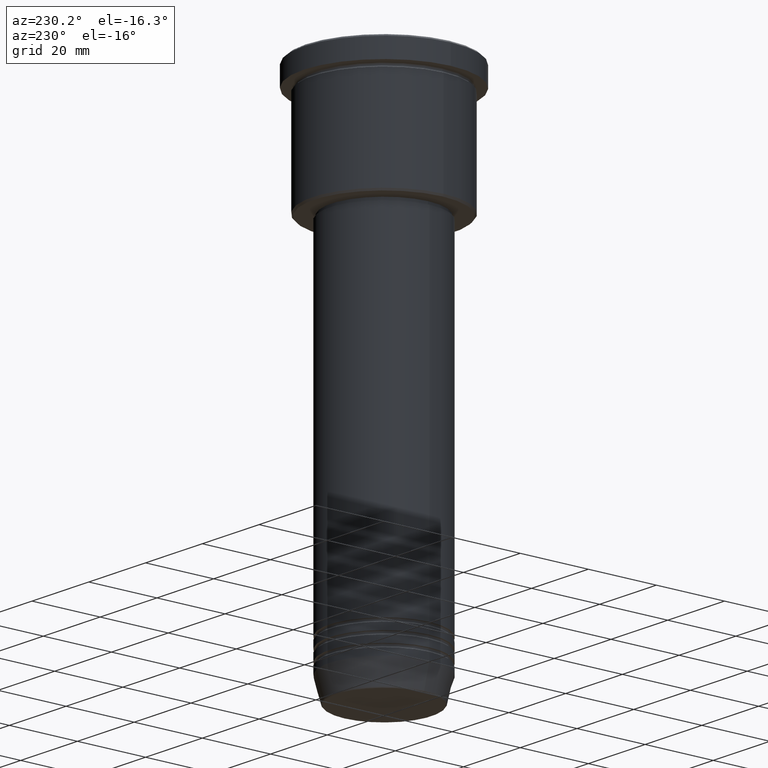
[diagram: clean part render]
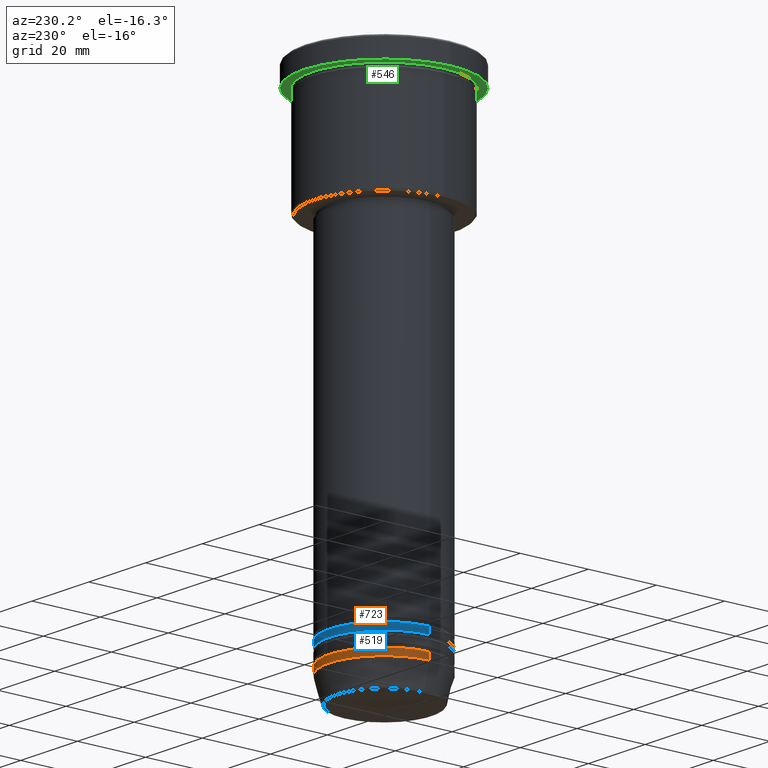
[diagram: same view with three faces highlighted in distinct colors, each labeled with its STEP entity id]
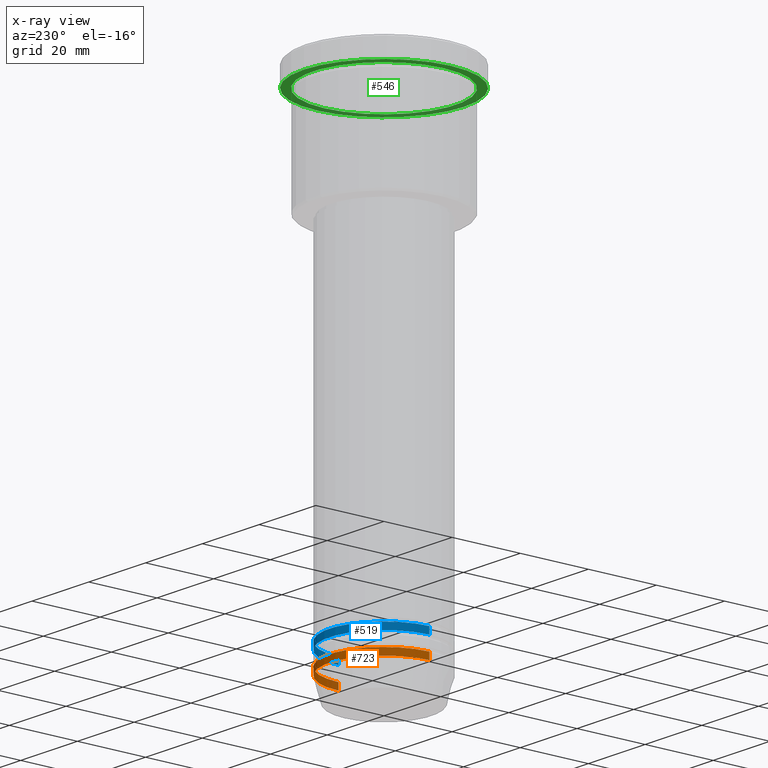
[diagram: x-ray of the same camera — body ghosted, the three highlighted faces saturated]
A machine part, auxiliary view with three faces highlighted in distinct colors.
The next image is the same camera in x-ray (body ghosted, the three faces saturated) — at least one of them is partly hidden behind the body in this view.
Their STEP definitions:

[orange] entity #723 — the highlighted cylindrical surface (partial cylindrical patch) has radius 16 mm, axis along (-0, -0, 1).
#45 = AXIS2_PLACEMENT_3D ( 'NONE', #1065, #797, #875 ) ;
#90 = CARTESIAN_POINT ( 'NONE',  ( -16.00000000000000000, 1.959434878635765131E-15, -144.0000000000000284 ) ) ;
#102 = EDGE_CURVE ( 'NONE', #195, #319, #159, .T. ) ;
#132 = CARTESIAN_POINT ( 'NONE',  ( 0.000000000000000000, 0.000000000000000000, -144.0000000000000284 ) ) ;
#159 = LINE ( 'NONE', #256, #1002 ) ;
#179 = CARTESIAN_POINT ( 'NONE',  ( 16.00000000000000000, 0.000000000000000000, -142.0000000000000284 ) ) ;
#195 = VERTEX_POINT ( 'NONE', #479 ) ;
#256 = CARTESIAN_POINT ( 'NONE',  ( 16.00000000000000000, 0.000000000000000000, 0.000000000000000000 ) ) ;
#310 = EDGE_LOOP ( 'NONE', ( #321, #560, #551, #653 ) ) ;
#319 = VERTEX_POINT ( 'NONE', #179 ) ;
#321 = ORIENTED_EDGE ( 'NONE', *, *, #345, .T. ) ;
#345 = EDGE_CURVE ( 'NONE', #195, #829, #1038, .T. ) ;
#347 = DIRECTION ( 'NONE',  ( -0.000000000000000000, -0.000000000000000000, 1.000000000000000000 ) ) ;
#410 = CIRCLE ( 'NONE', #45, 16.00000000000000000 ) ;
#479 = CARTESIAN_POINT ( 'NONE',  ( 16.00000000000000000, 0.000000000000000000, -144.0000000000000284 ) ) ;
#485 = AXIS2_PLACEMENT_3D ( 'NONE', #496, #764, #1134 ) ;
#493 = DIRECTION ( 'NONE',  ( -0.000000000000000000, -0.000000000000000000, 1.000000000000000000 ) ) ;
#496 = CARTESIAN_POINT ( 'NONE',  ( 0.000000000000000000, 0.000000000000000000, 0.000000000000000000 ) ) ;
#551 = ORIENTED_EDGE ( 'NONE', *, *, #597, .F. ) ;
#560 = ORIENTED_EDGE ( 'NONE', *, *, #639, .T. ) ;
#597 = EDGE_CURVE ( 'NONE', #319, #1016, #410, .T. ) ;
#639 = EDGE_CURVE ( 'NONE', #829, #1016, #868, .T. ) ;
#651 = AXIS2_PLACEMENT_3D ( 'NONE', #132, #493, #755 ) ;
#653 = ORIENTED_EDGE ( 'NONE', *, *, #102, .F. ) ;
#686 = CYLINDRICAL_SURFACE ( 'NONE', #485, 16.00000000000000000 ) ;
#723 = ADVANCED_FACE ( 'NONE', ( #955 ), #686, .T. ) ;
#755 = DIRECTION ( 'NONE',  ( 1.000000000000000000, 0.000000000000000000, 0.000000000000000000 ) ) ;
#764 = DIRECTION ( 'NONE',  ( -0.000000000000000000, -0.000000000000000000, 1.000000000000000000 ) ) ;
#781 = CARTESIAN_POINT ( 'NONE',  ( -16.00000000000000000, 1.959434878635765131E-15, 0.000000000000000000 ) ) ;
#787 = VECTOR ( 'NONE', #1138, 1000.000000000000000 ) ;
#797 = DIRECTION ( 'NONE',  ( -0.000000000000000000, -0.000000000000000000, 1.000000000000000000 ) ) ;
#829 = VERTEX_POINT ( 'NONE', #90 ) ;
#868 = LINE ( 'NONE', #781, #787 ) ;
#875 = DIRECTION ( 'NONE',  ( 1.000000000000000000, 0.000000000000000000, 0.000000000000000000 ) ) ;
#955 = FACE_OUTER_BOUND ( 'NONE', #310, .T. ) ;
#1002 = VECTOR ( 'NONE', #347, 1000.000000000000000 ) ;
#1016 = VERTEX_POINT ( 'NONE', #1106 ) ;
#1038 = CIRCLE ( 'NONE', #651, 16.00000000000000000 ) ;
#1065 = CARTESIAN_POINT ( 'NONE',  ( 0.000000000000000000, 0.000000000000000000, -142.0000000000000284 ) ) ;
#1106 = CARTESIAN_POINT ( 'NONE',  ( -16.00000000000000000, 1.959434878635765131E-15, -142.0000000000000284 ) ) ;
#1134 = DIRECTION ( 'NONE',  ( 1.000000000000000000, 0.000000000000000000, 0.000000000000000000 ) ) ;
#1138 = DIRECTION ( 'NONE',  ( -0.000000000000000000, -0.000000000000000000, 1.000000000000000000 ) ) ;

[blue] entity #519 — the highlighted cylindrical surface (partial cylindrical patch) has radius 16 mm, axis along (-0, -0, 1).
#51 = CARTESIAN_POINT ( 'NONE',  ( 16.00000000000000000, 0.000000000000000000, 0.000000000000000000 ) ) ;
#66 = DIRECTION ( 'NONE',  ( -0.000000000000000000, -0.000000000000000000, 1.000000000000000000 ) ) ;
#80 = CARTESIAN_POINT ( 'NONE',  ( -16.00000000000000000, 1.959434878635765131E-15, 0.000000000000000000 ) ) ;
#81 = EDGE_CURVE ( 'NONE', #778, #82, #119, .T. ) ;
#82 = VERTEX_POINT ( 'NONE', #169 ) ;
#119 = CIRCLE ( 'NONE', #714, 16.00000000000000000 ) ;
#137 = LINE ( 'NONE', #51, #531 ) ;
#152 = DIRECTION ( 'NONE',  ( -0.000000000000000000, -0.000000000000000000, 1.000000000000000000 ) ) ;
#161 = LINE ( 'NONE', #80, #182 ) ;
#169 = CARTESIAN_POINT ( 'NONE',  ( -16.00000000000000000, 1.959434878635765131E-15, -135.9999999999999716 ) ) ;
#182 = VECTOR ( 'NONE', #449, 1000.000000000000000 ) ;
#189 = CARTESIAN_POINT ( 'NONE',  ( 16.00000000000000000, 0.000000000000000000, -137.9999999999999716 ) ) ;
#215 = DIRECTION ( 'NONE',  ( -0.000000000000000000, -0.000000000000000000, 1.000000000000000000 ) ) ;
#255 = DIRECTION ( 'NONE',  ( 1.000000000000000000, 0.000000000000000000, 0.000000000000000000 ) ) ;
#282 = VERTEX_POINT ( 'NONE', #189 ) ;
#297 = CIRCLE ( 'NONE', #470, 16.00000000000000000 ) ;
#322 = DIRECTION ( 'NONE',  ( 1.000000000000000000, 0.000000000000000000, 0.000000000000000000 ) ) ;
#333 = EDGE_CURVE ( 'NONE', #282, #778, #137, .T. ) ;
#339 = DIRECTION ( 'NONE',  ( -0.000000000000000000, -0.000000000000000000, 1.000000000000000000 ) ) ;
#344 = CYLINDRICAL_SURFACE ( 'NONE', #769, 16.00000000000000000 ) ;
#398 = ORIENTED_EDGE ( 'NONE', *, *, #450, .T. ) ;
#417 = CARTESIAN_POINT ( 'NONE',  ( 16.00000000000000000, 0.000000000000000000, -135.9999999999999716 ) ) ;
#449 = DIRECTION ( 'NONE',  ( -0.000000000000000000, -0.000000000000000000, 1.000000000000000000 ) ) ;
#450 = EDGE_CURVE ( 'NONE', #282, #1083, #297, .T. ) ;
#470 = AXIS2_PLACEMENT_3D ( 'NONE', #768, #152, #322 ) ;
#519 = ADVANCED_FACE ( 'NONE', ( #784 ), #344, .T. ) ;
#526 = ORIENTED_EDGE ( 'NONE', *, *, #81, .F. ) ;
#531 = VECTOR ( 'NONE', #215, 1000.000000000000000 ) ;
#583 = ORIENTED_EDGE ( 'NONE', *, *, #852, .T. ) ;
#648 = EDGE_LOOP ( 'NONE', ( #398, #583, #526, #818 ) ) ;
#714 = AXIS2_PLACEMENT_3D ( 'NONE', #776, #339, #871 ) ;
#768 = CARTESIAN_POINT ( 'NONE',  ( 0.000000000000000000, 0.000000000000000000, -137.9999999999999716 ) ) ;
#769 = AXIS2_PLACEMENT_3D ( 'NONE', #972, #66, #255 ) ;
#776 = CARTESIAN_POINT ( 'NONE',  ( 0.000000000000000000, 0.000000000000000000, -135.9999999999999716 ) ) ;
#778 = VERTEX_POINT ( 'NONE', #417 ) ;
#784 = FACE_OUTER_BOUND ( 'NONE', #648, .T. ) ;
#818 = ORIENTED_EDGE ( 'NONE', *, *, #333, .F. ) ;
#852 = EDGE_CURVE ( 'NONE', #1083, #82, #161, .T. ) ;
#871 = DIRECTION ( 'NONE',  ( 1.000000000000000000, 0.000000000000000000, 0.000000000000000000 ) ) ;
#972 = CARTESIAN_POINT ( 'NONE',  ( 0.000000000000000000, 0.000000000000000000, 0.000000000000000000 ) ) ;
#1083 = VERTEX_POINT ( 'NONE', #1103 ) ;
#1103 = CARTESIAN_POINT ( 'NONE',  ( -16.00000000000000000, 1.959434878635765131E-15, -137.9999999999999716 ) ) ;

[green] entity #546 — the highlighted planar face has unit normal (0, 0, -1).
#15 = VERTEX_POINT ( 'NONE', #573 ) ;
#22 = AXIS2_PLACEMENT_3D ( 'NONE', #459, #646, #1099 ) ;
#75 = DIRECTION ( 'NONE',  ( -0.000000000000000000, -0.000000000000000000, 1.000000000000000000 ) ) ;
#162 = ORIENTED_EDGE ( 'NONE', *, *, #925, .F. ) ;
#167 = DIRECTION ( 'NONE',  ( -1.000000000000000000, 0.000000000000000000, -0.000000000000000000 ) ) ;
#192 = CARTESIAN_POINT ( 'NONE',  ( 23.50000000000000000, 0.000000000000000000, -5.999999999999994671 ) ) ;
#229 = VERTEX_POINT ( 'NONE', #555 ) ;
#273 = DIRECTION ( 'NONE',  ( -0.000000000000000000, -0.000000000000000000, 1.000000000000000000 ) ) ;
#312 = ORIENTED_EDGE ( 'NONE', *, *, #444, .F. ) ;
#334 = DIRECTION ( 'NONE',  ( 1.000000000000000000, 0.000000000000000000, 0.000000000000000000 ) ) ;
#374 = ORIENTED_EDGE ( 'NONE', *, *, #897, .T. ) ;
#378 = VERTEX_POINT ( 'NONE', #396 ) ;
#396 = CARTESIAN_POINT ( 'NONE',  ( 21.00000000000000000, 2.571758278209441661E-15, -5.999999999999994671 ) ) ;
#432 = CARTESIAN_POINT ( 'NONE',  ( 0.000000000000000000, 23.50000000000000000, -5.999999999999994671 ) ) ;
#444 = EDGE_CURVE ( 'NONE', #15, #1039, #736, .T. ) ;
#459 = CARTESIAN_POINT ( 'NONE',  ( 0.000000000000000000, 0.000000000000000000, -5.999999999999994671 ) ) ;
#503 = AXIS2_PLACEMENT_3D ( 'NONE', #726, #75, #815 ) ;
#544 = PLANE ( 'NONE',  #924 ) ;
#546 = ADVANCED_FACE ( 'NONE', ( #610, #711 ), #544, .T. ) ;
#555 = CARTESIAN_POINT ( 'NONE',  ( -21.00000000000000000, 0.000000000000000000, -5.999999999999994671 ) ) ;
#565 = CIRCLE ( 'NONE', #22, 21.00000000000000000 ) ;
#573 = CARTESIAN_POINT ( 'NONE',  ( -23.50000000000000000, 2.877919977996280320E-15, -5.999999999999994671 ) ) ;
#578 = CIRCLE ( 'NONE', #503, 23.50000000000000000 ) ;
#610 = FACE_BOUND ( 'NONE', #942, .T. ) ;
#646 = DIRECTION ( 'NONE',  ( -0.000000000000000000, -0.000000000000000000, 1.000000000000000000 ) ) ;
#693 = AXIS2_PLACEMENT_3D ( 'NONE', #864, #1140, #334 ) ;
#711 = FACE_OUTER_BOUND ( 'NONE', #997, .T. ) ;
#726 = CARTESIAN_POINT ( 'NONE',  ( 0.000000000000000000, 0.000000000000000000, -5.999999999999994671 ) ) ;
#736 = CIRCLE ( 'NONE', #693, 23.50000000000000000 ) ;
#815 = DIRECTION ( 'NONE',  ( 1.000000000000000000, 0.000000000000000000, 0.000000000000000000 ) ) ;
#864 = CARTESIAN_POINT ( 'NONE',  ( 0.000000000000000000, 0.000000000000000000, -5.999999999999994671 ) ) ;
#897 = EDGE_CURVE ( 'NONE', #378, #229, #907, .T. ) ;
#907 = CIRCLE ( 'NONE', #1058, 21.00000000000000000 ) ;
#924 = AXIS2_PLACEMENT_3D ( 'NONE', #432, #987, #167 ) ;
#925 = EDGE_CURVE ( 'NONE', #1039, #15, #578, .T. ) ;
#942 = EDGE_LOOP ( 'NONE', ( #1092, #374 ) ) ;
#987 = DIRECTION ( 'NONE',  ( 0.000000000000000000, 0.000000000000000000, -1.000000000000000000 ) ) ;
#997 = EDGE_LOOP ( 'NONE', ( #162, #312 ) ) ;
#1004 = EDGE_CURVE ( 'NONE', #229, #378, #565, .T. ) ;
#1039 = VERTEX_POINT ( 'NONE', #192 ) ;
#1058 = AXIS2_PLACEMENT_3D ( 'NONE', #1087, #273, #1163 ) ;
#1087 = CARTESIAN_POINT ( 'NONE',  ( 0.000000000000000000, 0.000000000000000000, -5.999999999999994671 ) ) ;
#1092 = ORIENTED_EDGE ( 'NONE', *, *, #1004, .T. ) ;
#1099 = DIRECTION ( 'NONE',  ( -1.000000000000000000, 0.000000000000000000, 0.000000000000000000 ) ) ;
#1140 = DIRECTION ( 'NONE',  ( -0.000000000000000000, -0.000000000000000000, 1.000000000000000000 ) ) ;
#1163 = DIRECTION ( 'NONE',  ( -1.000000000000000000, 0.000000000000000000, 0.000000000000000000 ) ) ;